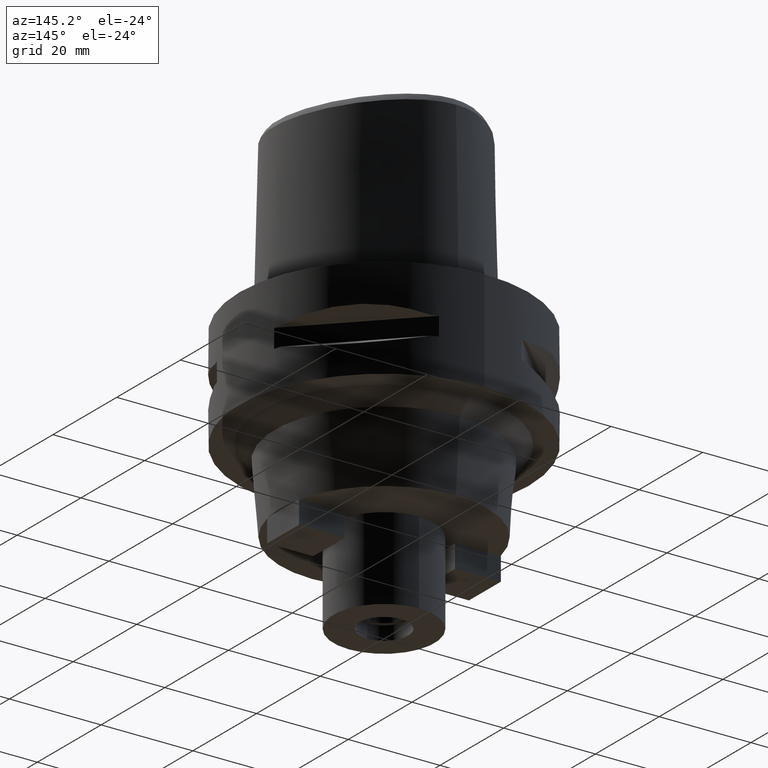
[diagram: clean part render]
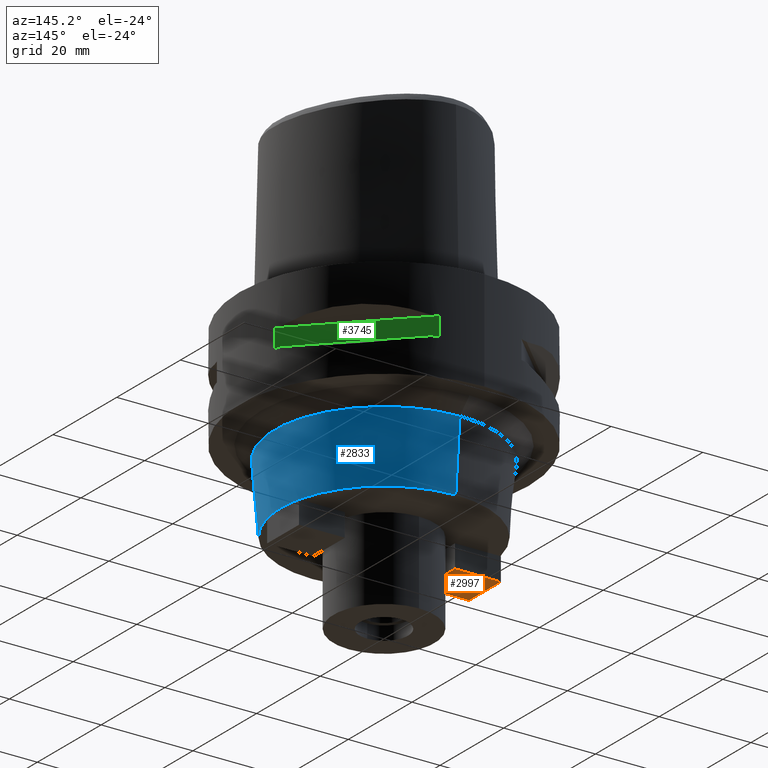
[diagram: same view with three faces highlighted in distinct colors, each labeled with its STEP entity id]
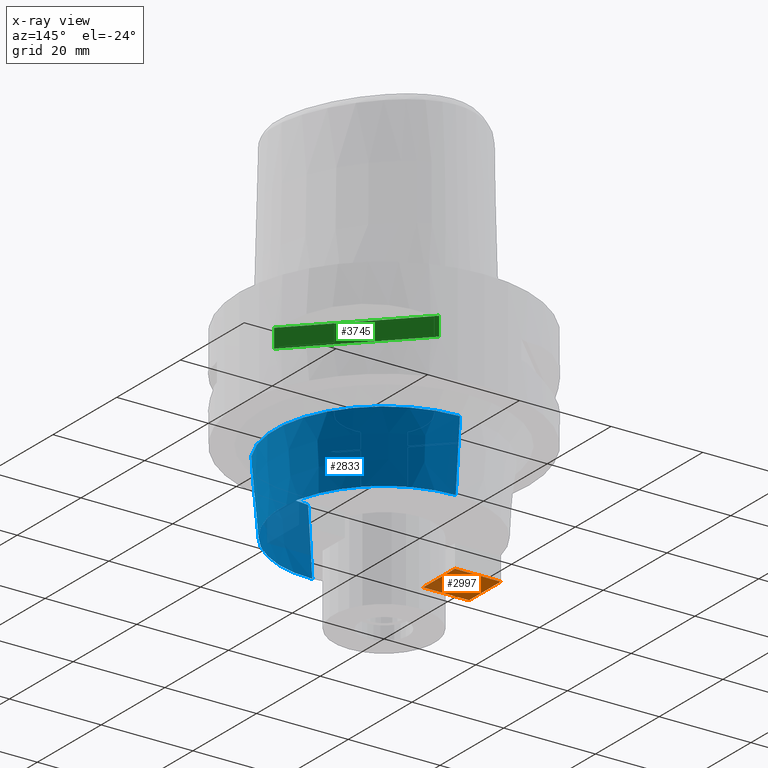
[diagram: x-ray of the same camera — body ghosted, the three highlighted faces saturated]
A machine part, auxiliary view with three faces highlighted in distinct colors.
The next image is the same camera in x-ray (body ghosted, the three faces saturated) — at least one of them is partly hidden behind the body in this view.
Their STEP definitions:

[orange] entity #2997 — the highlighted planar face has unit normal (0, 0, -1).
#753=DIRECTION('',(-1.E0,0.E0,0.E0));
#754=VECTOR('',#753,1.E1);
#755=CARTESIAN_POINT('',(-1.2E1,-5.E0,-4.5E1));
#756=LINE('',#755,#754);
#788=DIRECTION('',(-1.E0,0.E0,0.E0));
#789=VECTOR('',#788,1.E1);
#790=CARTESIAN_POINT('',(-1.2E1,5.E0,-4.5E1));
#791=LINE('',#790,#789);
#795=DIRECTION('',(0.E0,1.E0,0.E0));
#796=VECTOR('',#795,1.E1);
#797=CARTESIAN_POINT('',(-1.2E1,-5.E0,-4.5E1));
#798=LINE('',#797,#796);
#802=DIRECTION('',(0.E0,1.E0,0.E0));
#803=VECTOR('',#802,1.E1);
#804=CARTESIAN_POINT('',(-2.2E1,-5.E0,-4.5E1));
#805=LINE('',#804,#803);
#1963=CARTESIAN_POINT('',(-2.2E1,5.E0,-4.5E1));
#1964=VERTEX_POINT('',#1963);
#1965=CARTESIAN_POINT('',(-1.2E1,5.E0,-4.5E1));
#1966=VERTEX_POINT('',#1965);
#1969=CARTESIAN_POINT('',(-1.2E1,-5.E0,-4.5E1));
#1970=VERTEX_POINT('',#1969);
#1971=CARTESIAN_POINT('',(-2.2E1,-5.E0,-4.5E1));
#1972=VERTEX_POINT('',#1971);
#2985=CARTESIAN_POINT('',(-2.2E1,5.E0,-4.5E1));
#2986=DIRECTION('',(0.E0,0.E0,-1.E0));
#2987=DIRECTION('',(1.E0,0.E0,0.E0));
#2988=AXIS2_PLACEMENT_3D('',#2985,#2986,#2987);
#2989=PLANE('',#2988);
#2990=ORIENTED_EDGE('',*,*,#2905,.T.);
#2992=ORIENTED_EDGE('',*,*,#2991,.F.);
#2993=ORIENTED_EDGE('',*,*,#2964,.F.);
#2994=ORIENTED_EDGE('',*,*,#2979,.T.);
#2995=EDGE_LOOP('',(#2990,#2992,#2993,#2994));
#2996=FACE_OUTER_BOUND('',#2995,.F.);
#2905=EDGE_CURVE('',#1966,#1964,#791,.T.);
#2964=EDGE_CURVE('',#1970,#1972,#756,.T.);
#2979=EDGE_CURVE('',#1970,#1966,#798,.T.);
#2991=EDGE_CURVE('',#1972,#1964,#805,.T.);
#2997=ADVANCED_FACE('',(#2996),#2989,.T.);

[blue] entity #2833 — the highlighted conical surface has half-angle 5 deg.
#575=CARTESIAN_POINT('',(0.E0,0.E0,-2.5E1));
#576=DIRECTION('',(0.E0,0.E0,1.E0));
#577=DIRECTION('',(0.E0,-1.E0,0.E0));
#578=AXIS2_PLACEMENT_3D('',#575,#576,#577);
#583=DIRECTION('',(0.E0,-8.715574274774E-2,-9.961946980917E-1));
#584=VECTOR('',#583,1.505729756315E1);
#585=CARTESIAN_POINT('',(0.E0,2.381232995289E1,-2.5E1));
#586=LINE('',#585,#584);
#590=CARTESIAN_POINT('',(0.E0,0.E0,-4.E1));
#591=DIRECTION('',(0.E0,0.E0,1.E0));
#592=DIRECTION('',(9.777777777778E-1,2.096440251568E-1,0.E0));
#593=AXIS2_PLACEMENT_3D('',#590,#591,#592);
#648=CARTESIAN_POINT('',(0.E0,0.E0,-4.E1));
#649=DIRECTION('',(0.E0,0.E0,1.E0));
#650=DIRECTION('',(0.E0,-1.E0,0.E0));
#651=AXIS2_PLACEMENT_3D('',#648,#649,#650);
#663=CARTESIAN_POINT('',(0.E0,0.E0,-4.E1));
#664=DIRECTION('',(0.E0,0.E0,1.E0));
#665=DIRECTION('',(9.749960430436E-1,2.222222222222E-1,0.E0));
#666=AXIS2_PLACEMENT_3D('',#663,#664,#665);
#724=DIRECTION('',(0.E0,8.715574274774E-2,-9.961946980917E-1));
#725=VECTOR('',#724,1.505729756315E1);
#726=CARTESIAN_POINT('',(0.E0,-2.381232995289E1,-2.5E1));
#727=LINE('',#726,#725);
#838=CARTESIAN_POINT('',(0.E0,0.E0,-4.E1));
#839=DIRECTION('',(0.E0,0.E0,1.E0));
#840=DIRECTION('',(9.749960430436E-1,-2.222222222222E-1,0.E0));
#841=AXIS2_PLACEMENT_3D('',#838,#839,#840);
#881=CARTESIAN_POINT('',(0.E0,0.E0,-4.E1));
#882=DIRECTION('',(0.E0,0.E0,1.E0));
#883=DIRECTION('',(9.777777777778E-1,-2.096440251568E-1,0.E0));
#884=AXIS2_PLACEMENT_3D('',#881,#882,#883);
#1852=CARTESIAN_POINT('',(0.E0,2.381232995289E1,-2.5E1));
#1853=VERTEX_POINT('',#1852);
#1854=CARTESIAN_POINT('',(0.E0,-2.381232995289E1,-2.5E1));
#1855=VERTEX_POINT('',#1854);
#1856=CARTESIAN_POINT('',(2.2E1,4.716990566027E0,-4.E1));
#1857=CARTESIAN_POINT('',(2.193741096848E1,4.999999999999E0,-4.E1));
#1858=VERTEX_POINT('',#1856);
#1859=VERTEX_POINT('',#1857);
#1860=CARTESIAN_POINT('',(2.2E1,-4.716990566027E0,-4.E1));
#1861=VERTEX_POINT('',#1860);
#1862=CARTESIAN_POINT('',(2.193741096848E1,-4.999999999999E0,-4.E1));
#1863=VERTEX_POINT('',#1862);
#1864=CARTESIAN_POINT('',(0.E0,-2.25E1,-4.E1));
#1865=VERTEX_POINT('',#1864);
#1866=CARTESIAN_POINT('',(0.E0,2.25E1,-4.E1));
#1867=VERTEX_POINT('',#1866);
#2811=CARTESIAN_POINT('',(0.E0,0.E0,-3.25E1));
#2812=DIRECTION('',(0.E0,0.E0,1.E0));
#2813=DIRECTION('',(0.E0,1.E0,0.E0));
#2814=AXIS2_PLACEMENT_3D('',#2811,#2812,#2813);
#2815=CONICAL_SURFACE('',#2814,2.315616497644E1,5.E0);
#2817=ORIENTED_EDGE('',*,*,#2816,.F.);
#2819=ORIENTED_EDGE('',*,*,#2818,.F.);
#2821=ORIENTED_EDGE('',*,*,#2820,.F.);
#2823=ORIENTED_EDGE('',*,*,#2822,.F.);
#2825=ORIENTED_EDGE('',*,*,#2824,.F.);
#2826=ORIENTED_EDGE('',*,*,#2804,.T.);
#2828=ORIENTED_EDGE('',*,*,#2827,.T.);
#2830=ORIENTED_EDGE('',*,*,#2829,.F.);
#2831=EDGE_LOOP('',(#2817,#2819,#2821,#2823,#2825,#2826,#2828,#2830));
#2832=FACE_OUTER_BOUND('',#2831,.F.);
#579=CIRCLE('',#578,2.381232995288E1);
#594=CIRCLE('',#593,2.25E1);
#652=CIRCLE('',#651,2.25E1);
#667=CIRCLE('',#666,2.25E1);
#842=CIRCLE('',#841,2.25E1);
#885=CIRCLE('',#884,2.25E1);
#2804=EDGE_CURVE('',#1855,#1853,#579,.T.);
#2816=EDGE_CURVE('',#1858,#1859,#594,.T.);
#2818=EDGE_CURVE('',#1861,#1858,#885,.T.);
#2820=EDGE_CURVE('',#1863,#1861,#842,.T.);
#2822=EDGE_CURVE('',#1865,#1863,#652,.T.);
#2824=EDGE_CURVE('',#1855,#1865,#727,.T.);
#2827=EDGE_CURVE('',#1853,#1867,#586,.T.);
#2829=EDGE_CURVE('',#1859,#1867,#667,.T.);
#2833=ADVANCED_FACE('',(#2832),#2815,.T.);

[green] entity #3745 — the highlighted planar face has unit normal (-0.7071, -0.7071, 0).
#496=DIRECTION('',(0.E0,0.E0,-1.E0));
#497=VECTOR('',#496,4.1E0);
#498=CARTESIAN_POINT('',(3.019251670572E1,8.981198972018E0,-9.95E0));
#499=LINE('',#498,#497);
#514=DIRECTION('',(0.E0,0.E0,1.E0));
#515=VECTOR('',#514,4.1E0);
#516=CARTESIAN_POINT('',(8.981198972018E0,3.019251670572E1,-1.405E1));
#517=LINE('',#516,#515);
#1583=DIRECTION('',(-7.071067811865E-1,7.071067811865E-1,0.E0));
#1584=VECTOR('',#1583,2.999733321480E1);
#1585=CARTESIAN_POINT('',(3.019251670572E1,8.981198972018E0,-9.95E0));
#1586=LINE('',#1585,#1584);
#1606=DIRECTION('',(-7.071067811865E-1,7.071067811865E-1,0.E0));
#1607=VECTOR('',#1606,2.999733321480E1);
#1608=CARTESIAN_POINT('',(3.019251670572E1,8.981198972018E0,-1.405E1));
#1609=LINE('',#1608,#1607);
#1837=CARTESIAN_POINT('',(3.019251670572E1,8.981198972020E0,-9.95E0));
#1838=VERTEX_POINT('',#1837);
#1839=CARTESIAN_POINT('',(3.019251670572E1,8.981198972018E0,-1.405E1));
#1840=VERTEX_POINT('',#1839);
#1844=CARTESIAN_POINT('',(8.981198972020E0,3.019251670572E1,-1.405E1));
#1845=VERTEX_POINT('',#1844);
#1846=CARTESIAN_POINT('',(8.981198972018E0,3.019251670572E1,-9.95E0));
#1847=VERTEX_POINT('',#1846);
#3733=CARTESIAN_POINT('',(5.444722215136E0,3.372899346260E1,-9.95E0));
#3734=DIRECTION('',(-7.071067811865E-1,-7.071067811865E-1,0.E0));
#3735=DIRECTION('',(0.E0,0.E0,-1.E0));
#3736=AXIS2_PLACEMENT_3D('',#3733,#3734,#3735);
#3737=PLANE('',#3736);
#3738=ORIENTED_EDGE('',*,*,#2760,.F.);
#3740=ORIENTED_EDGE('',*,*,#3739,.F.);
#3741=ORIENTED_EDGE('',*,*,#2752,.F.);
#3742=ORIENTED_EDGE('',*,*,#3726,.T.);
#3743=EDGE_LOOP('',(#3738,#3740,#3741,#3742));
#3744=FACE_OUTER_BOUND('',#3743,.F.);
#2752=EDGE_CURVE('',#1838,#1840,#499,.T.);
#2760=EDGE_CURVE('',#1845,#1847,#517,.T.);
#3726=EDGE_CURVE('',#1838,#1847,#1586,.T.);
#3739=EDGE_CURVE('',#1840,#1845,#1609,.T.);
#3745=ADVANCED_FACE('',(#3744),#3737,.F.);